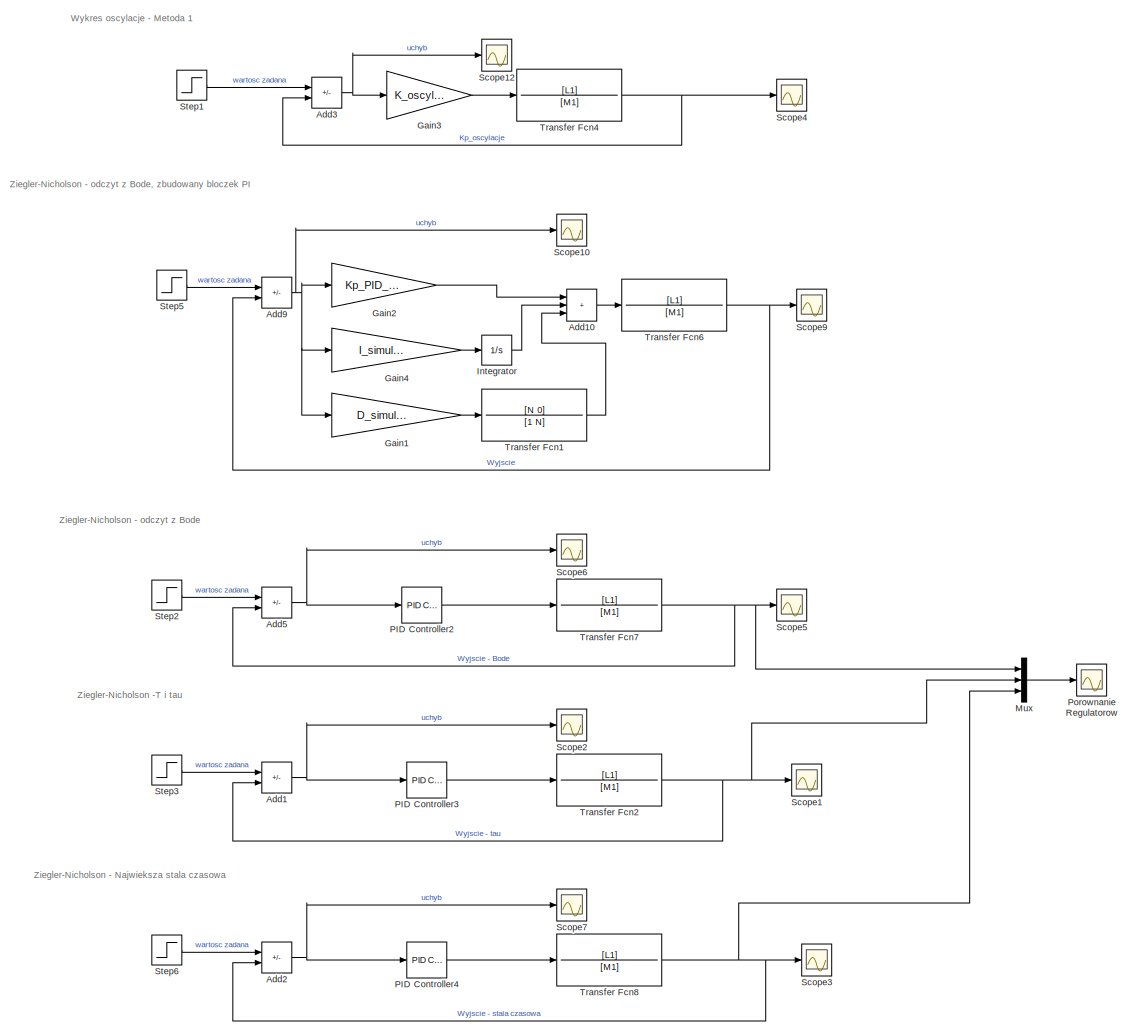
[diagram: root canvas - part 1/1, most of the canvas]
MODEL slx_4ee573b8ad8c
KIND model
CONFIG AbsTol = auto
CONFIG EnableMultiTasking = off
CONFIG FixedStep = auto
CONFIG MaxStep = auto
CONFIG MinStep = auto
CONFIG RelTol = 1e-3
CONFIG SampleTimeConstraint = Unconstrained
CONFIG SolverName = VariableStepAuto
CONFIG StartTime = 0.0
CONFIG StopTime = 150
BLOCK [Sum] Add1
  IconShape = rectangular
  Inputs = +-
BLOCK [Sum] Add10
  IconShape = rectangular
  Inputs = +++
BLOCK [Sum] Add2
  IconShape = rectangular
  Inputs = +-
BLOCK [Sum] Add3
  IconShape = rectangular
  Inputs = +-
BLOCK [Sum] Add5
  IconShape = rectangular
  Inputs = +-
BLOCK [Sum] Add9
  IconShape = rectangular
  Inputs = +-
BLOCK [Gain] Gain1
  Gain = D_simulink_Bode
BLOCK [Gain] Gain2
  Gain = Kp_PID_Bode
BLOCK [Gain] Gain3
  Gain = K_oscylacje
BLOCK [Gain] Gain4
  Gain = I_simulink_Bode
BLOCK [Integrator] Integrator
BLOCK [Mux] Mux
  DisplayOption = bar
  Inputs = 3
BLOCK [Reference] PID Controller2  REF=slpidlib/PID Controller
  LibrarySourceBlock = simulink/Continuous/PID Controller
  SourceBlock = slpidlib/PID Controller
  SourceType = PID 1dof
BLOCK [Reference] PID Controller3  REF=slpidlib/PID Controller
  LibrarySourceBlock = simulink/Continuous/PID Controller
  SourceBlock = slpidlib/PID Controller
  SourceType = PID 1dof
BLOCK [Reference] PID Controller4  REF=slpidlib/PID Controller
  LibrarySourceBlock = simulink/Continuous/PID Controller
  SourceBlock = slpidlib/PID Controller
  SourceType = PID 1dof
BLOCK [Scope] Porownanie Regulatorow
  ActiveDisplayYMaximum = 2.308362075626202
  ActiveDisplayYMinimum = -0.59267779679350752
  DataLoggingVariableName = ScopeData7
  Floating = off
  GraphicalSettings = {"Style":{"BackgroundColor":[0.12941176470588237,0.12941176470588237,0.12941176470588237],"AxesColor":[0.07058823529411765,0.07058823529411765,0.07058823529411765],"LabelsColor":[0.8509803921568627,0.8509803921568627,0.8509803921568627],"PreserveColors":false,"Visible":[true,true,true],"LineStyle":["-","-","-"],"LineWidth":[1.5,1.5,1.5],"BarWidth":[0.9,0.9,0.9],"LineColor":["auto","auto","auto"],"...<+2280ch>
  MultipleDisplayCache = [{"MaxYLimMag":1.649360617921857,"MaxYLimReal":2.308362075626202,"MinYLimMag":0,"MinYLimReal":-0.59267779679350752,"PlotAsMagnitudePhase":false,"ShowGrid":true,"ShowLegend":true,"Title":"%<SignalLabel>","YLabel":""}]
  NameLocation = right
  NumInputPorts = 1
  ScopeFrameLocation = window
  ShowLegend = on
  WasSavedAsWebScope = on
  WindowPosition = [5373.000000,-513.000000,2222.000000,1584.000000,]
BLOCK [Scope] Scope1
  ActiveDisplayYMaximum = 2.6607619283357895
  ActiveDisplayYMinimum = -1.1491294790076525
  Floating = off
  GraphicalSettings = {"Style":{"BackgroundColor":[0.12941176470588237,0.12941176470588237,0.12941176470588237],"AxesColor":[0.07058823529411765,0.07058823529411765,0.07058823529411765],"LabelsColor":[0.8509803921568627,0.8509803921568627,0.8509803921568627],"PreserveColors":false,"Visible":[true],"LineStyle":["-"],"LineWidth":[1.5],"BarWidth":[0.9],"LineColor":["auto"],"LineFaceAlpha":[1],"LineEdgeAlpha":[1],"Marker":...<+2294ch>
  MultipleDisplayCache = [{"MaxYLimMag":1.649360617921857,"MaxYLimReal":2.6607619283357895,"MinYLimMag":0,"MinYLimReal":-1.1491294790076525,"PlotAsMagnitudePhase":false,"ShowGrid":true,"ShowLegend":true,"Title":"%<SignalLabel>","YLabel":""}]  <repeated x8 — deduplicated; at blocks: Scope1, Scope10, Scope12, Scope2, Scope3, Scope5, Scope6, Scope7>
  NumInputPorts = 1
  ScopeFrameLocation = window
  ShowLegend = on
  WasSavedAsWebScope = on
  WindowPosition = [1.000000,-461.000000,1920.000000,1012.000000,]
BLOCK [Scope] Scope10
  ActiveDisplayYMaximum = 2.6607619283357895
  ActiveDisplayYMinimum = -1.1491294790076525
  DataLoggingVariableName = ScopeData10
  Floating = off
  GraphicalSettings = {"Style":{"BackgroundColor":[0.12941176470588237,0.12941176470588237,0.12941176470588237],"AxesColor":[0.07058823529411765,0.07058823529411765,0.07058823529411765],"LabelsColor":[0.8509803921568627,0.8509803921568627,0.8509803921568627],"PreserveColors":false,"Visible":[true],"LineStyle":["-"],"LineWidth":[1.5],"BarWidth":[0.9],"LineColor":["auto"],"LineFaceAlpha":[1],"LineEdgeAlpha":[1],"Marker":...<+1991ch>
  NumInputPorts = 1
  ScopeFrameLocation = window
  ShowLegend = on
  WasSavedAsWebScope = on
  WindowPosition = [1.000000,-461.000000,1920.000000,1012.000000,]
BLOCK [Scope] Scope12
  ActiveDisplayYMaximum = 2.6607619283357895
  ActiveDisplayYMinimum = -1.1491294790076525
  DataLoggingVariableName = ScopeData12
  Floating = off
  GraphicalSettings = {"Style":{"BackgroundColor":[0.12941176470588237,0.12941176470588237,0.12941176470588237],"AxesColor":[0.07058823529411765,0.07058823529411765,0.07058823529411765],"LabelsColor":[0.8509803921568627,0.8509803921568627,0.8509803921568627],"PreserveColors":false,"Visible":[true],"LineStyle":["-"],"LineWidth":[1.5],"BarWidth":[0.9],"LineColor":["auto"],"LineFaceAlpha":[1],"LineEdgeAlpha":[1],"Marker":...<+2309ch>
  NumInputPorts = 1
  ScopeFrameLocation = window
  ShowLegend = on
  WasSavedAsWebScope = on
  WindowPosition = [1.000000,38.000000,1920.000000,1011.000000,]
BLOCK [Scope] Scope2
  ActiveDisplayYMaximum = 2.6607619283357895
  ActiveDisplayYMinimum = -1.1491294790076525
  DataLoggingVariableName = ScopeData1
  Floating = off
  GraphicalSettings = {"Style":{"BackgroundColor":[0.12941176470588237,0.12941176470588237,0.12941176470588237],"AxesColor":[0.07058823529411765,0.07058823529411765,0.07058823529411765],"LabelsColor":[0.8509803921568627,0.8509803921568627,0.8509803921568627],"PreserveColors":false,"Visible":[true],"LineStyle":["-"],"LineWidth":[1.5],"BarWidth":[0.9],"LineColor":["auto"],"LineFaceAlpha":[1],"LineEdgeAlpha":[1],"Marker":...<+2278ch>
  NumInputPorts = 1
  ScopeFrameLocation = window
  ShowLegend = on
  WasSavedAsWebScope = on
  WindowPosition = [1.000000,38.000000,1920.000000,1011.000000,]
BLOCK [Scope] Scope3
  ActiveDisplayYMaximum = 2.6607619283357895
  ActiveDisplayYMinimum = -1.1491294790076525
  DataLoggingVariableName = ScopeData2
  Floating = off
  GraphicalSettings = {"Style":{"BackgroundColor":[0.12941176470588237,0.12941176470588237,0.12941176470588237],"AxesColor":[0.07058823529411765,0.07058823529411765,0.07058823529411765],"LabelsColor":[0.8509803921568627,0.8509803921568627,0.8509803921568627],"PreserveColors":false,"Visible":[true],"LineStyle":["-"],"LineWidth":[1.5],"BarWidth":[0.9],"LineColor":["auto"],"LineFaceAlpha":[1],"LineEdgeAlpha":[1],"Marker":...<+2314ch>
  NumInputPorts = 1
  ScopeFrameLocation = window
  ShowLegend = on
  WasSavedAsWebScope = on
  WindowPosition = [1.000000,-461.000000,1920.000000,1012.000000,]
BLOCK [Scope] Scope4
  ActiveDisplayYMaximum = 2.9033635494589429
  ActiveDisplayYMinimum = -2.131712214036086
  DataLoggingVariableName = ScopeData4
  Floating = off
  GraphicalSettings = {"Style":{"BackgroundColor":[0.12941176470588237,0.12941176470588237,0.12941176470588237],"AxesColor":[0.07058823529411765,0.07058823529411765,0.07058823529411765],"LabelsColor":[0.8509803921568627,0.8509803921568627,0.8509803921568627],"PreserveColors":false,"Visible":[true],"LineStyle":["-"],"LineWidth":[1.5],"BarWidth":[0.9],"LineColor":["auto"],"LineFaceAlpha":[1],"LineEdgeAlpha":[1],"Marker":...<+2305ch>
  MultipleDisplayCache = [{"MaxYLimMag":2.2312634777011815,"MaxYLimReal":2.9033635494589429,"MinYLimMag":0,"MinYLimReal":-2.131712214036086,"PlotAsMagnitudePhase":false,"ShowGrid":true,"ShowLegend":true,"Title":"%<SignalLabel>","YLabel":""}]
  NumInputPorts = 1
  ScopeFrameLocation = window
  ShowLegend = on
  WasSavedAsWebScope = on
  WindowPosition = [5425.000000,-681.000000,2256.000000,2032.000000,]
BLOCK [Scope] Scope5
  ActiveDisplayYMaximum = 2.6607619283357895
  ActiveDisplayYMinimum = -1.1491294790076525
  DataLoggingVariableName = ScopeData5
  Floating = off
  GraphicalSettings = {"Style":{"BackgroundColor":[0.12941176470588237,0.12941176470588237,0.12941176470588237],"AxesColor":[0.07058823529411765,0.07058823529411765,0.07058823529411765],"LabelsColor":[0.8509803921568627,0.8509803921568627,0.8509803921568627],"PreserveColors":false,"Visible":[true],"LineStyle":["-"],"LineWidth":[1.5],"BarWidth":[0.9],"LineColor":["auto"],"LineFaceAlpha":[1],"LineEdgeAlpha":[1],"Marker":...<+2296ch>
  NumInputPorts = 1
  ScopeFrameLocation = window
  ShowLegend = on
  WasSavedAsWebScope = on
  WindowPosition = [5319.000000,-371.000000,1920.000000,1012.000000,]
BLOCK [Scope] Scope6
  ActiveDisplayYMaximum = 2.6607619283357895
  ActiveDisplayYMinimum = -1.1491294790076525
  DataLoggingVariableName = ScopeData6
  Floating = off
  GraphicalSettings = {"Style":{"BackgroundColor":[0.12941176470588237,0.12941176470588237,0.12941176470588237],"AxesColor":[0.07058823529411765,0.07058823529411765,0.07058823529411765],"LabelsColor":[0.8509803921568627,0.8509803921568627,0.8509803921568627],"PreserveColors":false,"Visible":[true],"LineStyle":["-"],"LineWidth":[1.5],"BarWidth":[0.9],"LineColor":["auto"],"LineFaceAlpha":[1],"LineEdgeAlpha":[1],"Marker":...<+1991ch>
  NumInputPorts = 1
  ScopeFrameLocation = window
  ShowLegend = on
  WasSavedAsWebScope = on
  WindowPosition = [5533.000000,13.000000,1920.000000,1012.000000,]
BLOCK [Scope] Scope7
  ActiveDisplayYMaximum = 2.6607619283357895
  ActiveDisplayYMinimum = -1.1491294790076525
  DataLoggingVariableName = ScopeData3
  Floating = off
  GraphicalSettings = {"Style":{"BackgroundColor":[0.12941176470588237,0.12941176470588237,0.12941176470588237],"AxesColor":[0.07058823529411765,0.07058823529411765,0.07058823529411765],"LabelsColor":[0.8509803921568627,0.8509803921568627,0.8509803921568627],"PreserveColors":false,"Visible":[true],"LineStyle":["-"],"LineWidth":[1.5],"BarWidth":[0.9],"LineColor":["auto"],"LineFaceAlpha":[1],"LineEdgeAlpha":[1],"Marker":...<+2279ch>
  NumInputPorts = 1
  ScopeFrameLocation = window
  ShowLegend = on
  WasSavedAsWebScope = on
  WindowPosition = [1.000000,38.000000,1920.000000,1011.000000,]
BLOCK [Scope] Scope9
  ActiveDisplayYMaximum = 4.725367576283614
  ActiveDisplayYMinimum = -4.4435903629035058
  DataLoggingVariableName = ScopeData9
  Floating = off
  GraphicalSettings = {"Style":{"BackgroundColor":[0.12941176470588237,0.12941176470588237,0.12941176470588237],"AxesColor":[0.07058823529411765,0.07058823529411765,0.07058823529411765],"LabelsColor":[0.8509803921568627,0.8509803921568627,0.8509803921568627],"PreserveColors":false,"Visible":[true],"LineStyle":["-"],"LineWidth":[1.5],"BarWidth":[0.9],"LineColor":["auto"],"LineFaceAlpha":[1],"LineEdgeAlpha":[1],"Marker":...<+2292ch>
  MultipleDisplayCache = [{"MaxYLimMag":1.649360617921857,"MaxYLimReal":4.725367576283614,"MinYLimMag":0,"MinYLimReal":-4.4435903629035058,"PlotAsMagnitudePhase":false,"ShowGrid":true,"ShowLegend":true,"Title":"%<SignalLabel>","YLabel":""}]
  NumInputPorts = 1
  ScopeFrameLocation = window
  ShowLegend = on
  WasSavedAsWebScope = on
  WindowPosition = [5575.000000,21.000000,1920.000000,1012.000000,]
BLOCK [Step] Step1
  SampleTime = Sample_time
  Time = 0
BLOCK [Step] Step2
  SampleTime = Sample_time
  Time = 0
BLOCK [Step] Step3
  SampleTime = Sample_time
  Time = 0
BLOCK [Step] Step5
  SampleTime = Sample_time
  Time = 0
BLOCK [Step] Step6
  SampleTime = Sample_time
  Time = 0
BLOCK [TransferFcn] Transfer Fcn1
  Denominator = [1 N]
  Numerator = [N 0]
BLOCK [TransferFcn] Transfer Fcn2
  Denominator = [M1]
  Numerator = [L1]
BLOCK [TransferFcn] Transfer Fcn4
  Denominator = [M1]
  Numerator = [L1]
BLOCK [TransferFcn] Transfer Fcn6
  Denominator = [M1]
  Numerator = [L1]
BLOCK [TransferFcn] Transfer Fcn7
  Denominator = [M1]
  Numerator = [L1]
BLOCK [TransferFcn] Transfer Fcn8
  Denominator = [M1]
  Numerator = [L1]
ANNOTATION (root): Wykres oscylacje - Metoda 1
ANNOTATION (root): Ziegler-Nicholson - Najwieksza stala czasowa
ANNOTATION (root): Ziegler-Nicholson - odczyt z Bode
ANNOTATION (root): Ziegler-Nicholson - odczyt z Bode, zbudowany bloczek PI
ANNOTATION (root): Ziegler-Nicholson -T i tau
LINE Add10:1 -> Transfer Fcn6:1
NET Add1:1 -> PID Controller3:1, Scope2:1
NET Add2:1 -> PID Controller4:1, Scope7:1
NET Add3:1 -> Gain3:1, Scope12:1
NET Add5:1 -> PID Controller2:1, Scope6:1
NET Add9:1 -> Gain1:1, Gain2:1, Gain4:1, Scope10:1
LINE Gain1:1 -> Transfer Fcn1:1
LINE Gain2:1 -> Add10:1
LINE Gain3:1 -> Transfer Fcn4:1
LINE Gain4:1 -> Integrator:1
LINE Integrator:1 -> Add10:2
LINE Mux:1 -> Porownanie Regulatorow:1
LINE PID Controller2:1 -> Transfer Fcn7:1
LINE PID Controller3:1 -> Transfer Fcn2:1
LINE PID Controller4:1 -> Transfer Fcn8:1
LINE Step1:1 -> Add3:1
LINE Step2:1 -> Add5:1
LINE Step3:1 -> Add1:1
LINE Step5:1 -> Add9:1
LINE Step6:1 -> Add2:1
LINE Transfer Fcn1:1 -> Add10:3
NET Transfer Fcn2:1 -> Add1:2, Mux:2, Scope1:1
NET Transfer Fcn4:1 -> Add3:2, Scope4:1
NET Transfer Fcn6:1 -> Add9:2, Scope9:1
NET Transfer Fcn7:1 -> Add5:2, Mux:1, Scope5:1
NET Transfer Fcn8:1 -> Add2:2, Mux:3, Scope3:1
note: NET lines group one-source signal fan-out (src -> all destinations, sorted); 1:1 wires keep LINE
